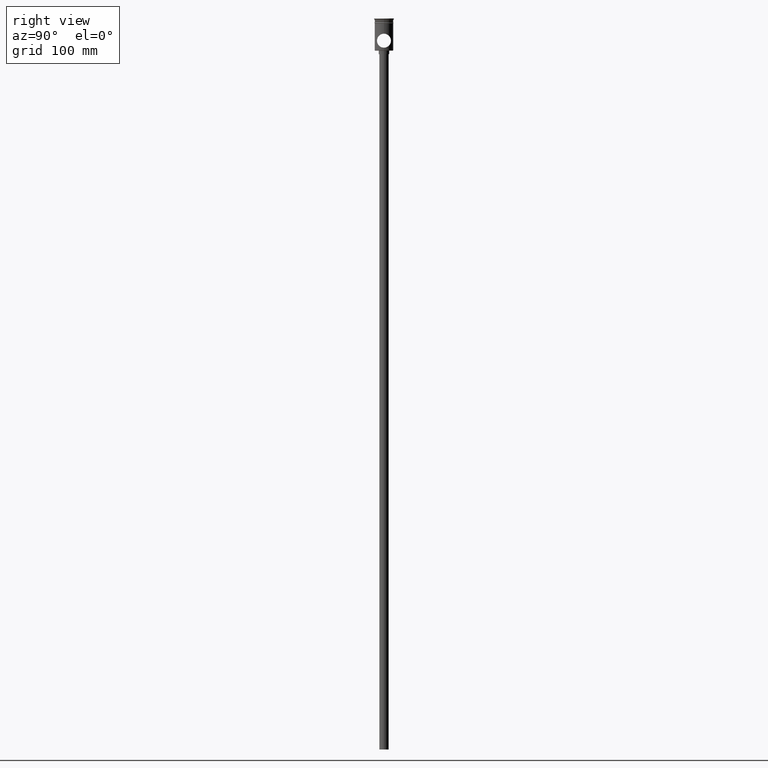
[diagram: clean part render]
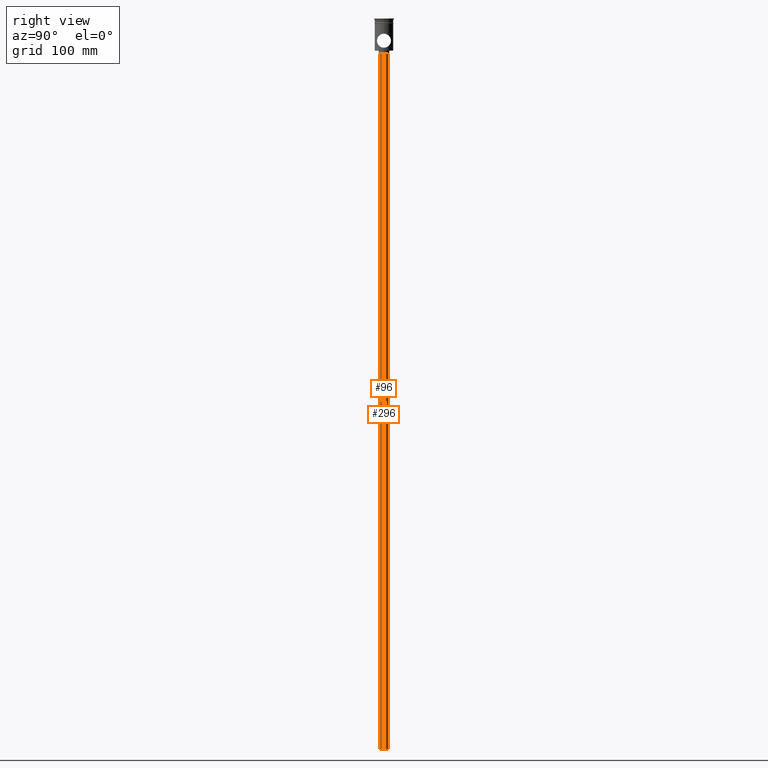
[diagram: same view with one multi-face feature highlighted, each face labeled with its STEP entity id]
A machine part, right view. The highlighted faces form ONE feature: a constant-radius fillet chain: 2 tangent blend faces with common blend radius 4 mm. The faces share edges in the B-rep.
Their STEP definitions:
[1] entity #96 (Cylinder):
#90 = VERTEX_POINT ( 'NONE', #298 ) ;
#94 = AXIS2_PLACEMENT_3D ( 'NONE', #335, #801, #144 ) ;
#96 = ADVANCED_FACE ( 'NONE', ( #416 ), #1240, .T. ) ;
#112 = ORIENTED_EDGE ( 'NONE', *, *, #1518, .F. ) ;
#122 = ORIENTED_EDGE ( 'NONE', *, *, #762, .T. ) ;
#144 = DIRECTION ( 'NONE',  ( -1.000000000000000000, 0.000000000000000000, 0.000000000000000000 ) ) ;
#204 = DIRECTION ( 'NONE',  ( -0.000000000000000000, -0.000000000000000000, 1.000000000000000000 ) ) ;
#237 = CARTESIAN_POINT ( 'NONE',  ( 0.000000000000000000, 0.000000000000000000, -30.50000000000000000 ) ) ;
#282 = CARTESIAN_POINT ( 'NONE',  ( -4.000000000000000000, 4.898587196589412829E-16, -627.5000000000000000 ) ) ;
#298 = CARTESIAN_POINT ( 'NONE',  ( -4.000000000000000000, 4.898587196589412829E-16, -627.5000000000000000 ) ) ;
#308 = VERTEX_POINT ( 'NONE', #588 ) ;
#335 = CARTESIAN_POINT ( 'NONE',  ( 0.000000000000000000, 0.000000000000000000, -627.5000000000000000 ) ) ;
#353 = CARTESIAN_POINT ( 'NONE',  ( -4.000000000000000000, 4.898587196589412829E-16, -30.50000000000000000 ) ) ;
#364 = DIRECTION ( 'NONE',  ( -1.000000000000000000, 0.000000000000000000, 0.000000000000000000 ) ) ;
#399 = DIRECTION ( 'NONE',  ( -0.000000000000000000, -0.000000000000000000, 1.000000000000000000 ) ) ;
#416 = FACE_OUTER_BOUND ( 'NONE', #935, .T. ) ;
#439 = DIRECTION ( 'NONE',  ( 1.000000000000000000, 0.000000000000000000, 0.000000000000000000 ) ) ;
#539 = VECTOR ( 'NONE', #399, 1000.000000000000000 ) ;
#588 = CARTESIAN_POINT ( 'NONE',  ( 4.000000000000000000, 0.000000000000000000, -30.50000000000000000 ) ) ;
#605 = AXIS2_PLACEMENT_3D ( 'NONE', #878, #1232, #439 ) ;
#633 = AXIS2_PLACEMENT_3D ( 'NONE', #237, #1188, #364 ) ;
#664 = EDGE_CURVE ( 'NONE', #959, #308, #1498, .T. ) ;
#666 = CARTESIAN_POINT ( 'NONE',  ( 4.000000000000000000, 0.000000000000000000, -627.5000000000000000 ) ) ;
#669 = ORIENTED_EDGE ( 'NONE', *, *, #664, .T. ) ;
#723 = CIRCLE ( 'NONE', #633, 4.000000000000000000 ) ;
#762 = EDGE_CURVE ( 'NONE', #308, #1126, #723, .T. ) ;
#794 = VECTOR ( 'NONE', #204, 1000.000000000000000 ) ;
#801 = DIRECTION ( 'NONE',  ( 0.000000000000000000, 0.000000000000000000, -1.000000000000000000 ) ) ;
#823 = CIRCLE ( 'NONE', #94, 4.000000000000000000 ) ;
#878 = CARTESIAN_POINT ( 'NONE',  ( 0.000000000000000000, 0.000000000000000000, -627.5000000000000000 ) ) ;
#935 = EDGE_LOOP ( 'NONE', ( #1000, #112, #669, #122 ) ) ;
#959 = VERTEX_POINT ( 'NONE', #666 ) ;
#1000 = ORIENTED_EDGE ( 'NONE', *, *, #1371, .F. ) ;
#1126 = VERTEX_POINT ( 'NONE', #353 ) ;
#1188 = DIRECTION ( 'NONE',  ( 0.000000000000000000, 0.000000000000000000, -1.000000000000000000 ) ) ;
#1232 = DIRECTION ( 'NONE',  ( -0.000000000000000000, -0.000000000000000000, 1.000000000000000000 ) ) ;
#1240 = CYLINDRICAL_SURFACE ( 'NONE', #605, 4.000000000000000000 ) ;
#1261 = CARTESIAN_POINT ( 'NONE',  ( 4.000000000000000000, 0.000000000000000000, -627.5000000000000000 ) ) ;
#1331 = LINE ( 'NONE', #282, #539 ) ;
#1371 = EDGE_CURVE ( 'NONE', #90, #1126, #1331, .T. ) ;
#1498 = LINE ( 'NONE', #1261, #794 ) ;
#1518 = EDGE_CURVE ( 'NONE', #959, #90, #823, .T. ) ;
[2] entity #296 (Cylinder):
#90 = VERTEX_POINT ( 'NONE', #298 ) ;
#155 = EDGE_CURVE ( 'NONE', #90, #959, #1141, .T. ) ;
#183 = DIRECTION ( 'NONE',  ( -1.000000000000000000, 0.000000000000000000, 0.000000000000000000 ) ) ;
#204 = DIRECTION ( 'NONE',  ( -0.000000000000000000, -0.000000000000000000, 1.000000000000000000 ) ) ;
#282 = CARTESIAN_POINT ( 'NONE',  ( -4.000000000000000000, 4.898587196589412829E-16, -627.5000000000000000 ) ) ;
#296 = ADVANCED_FACE ( 'NONE', ( #1283 ), #699, .T. ) ;
#298 = CARTESIAN_POINT ( 'NONE',  ( -4.000000000000000000, 4.898587196589412829E-16, -627.5000000000000000 ) ) ;
#300 = ORIENTED_EDGE ( 'NONE', *, *, #664, .F. ) ;
#308 = VERTEX_POINT ( 'NONE', #588 ) ;
#327 = CARTESIAN_POINT ( 'NONE',  ( 0.000000000000000000, 0.000000000000000000, -30.50000000000000000 ) ) ;
#353 = CARTESIAN_POINT ( 'NONE',  ( -4.000000000000000000, 4.898587196589412829E-16, -30.50000000000000000 ) ) ;
#359 = DIRECTION ( 'NONE',  ( -0.000000000000000000, -0.000000000000000000, 1.000000000000000000 ) ) ;
#399 = DIRECTION ( 'NONE',  ( -0.000000000000000000, -0.000000000000000000, 1.000000000000000000 ) ) ;
#412 = EDGE_LOOP ( 'NONE', ( #862, #928, #1014, #300 ) ) ;
#539 = VECTOR ( 'NONE', #399, 1000.000000000000000 ) ;
#577 = DIRECTION ( 'NONE',  ( 0.000000000000000000, 0.000000000000000000, -1.000000000000000000 ) ) ;
#586 = CIRCLE ( 'NONE', #749, 4.000000000000000000 ) ;
#588 = CARTESIAN_POINT ( 'NONE',  ( 4.000000000000000000, 0.000000000000000000, -30.50000000000000000 ) ) ;
#609 = EDGE_CURVE ( 'NONE', #1126, #308, #586, .T. ) ;
#664 = EDGE_CURVE ( 'NONE', #959, #308, #1498, .T. ) ;
#666 = CARTESIAN_POINT ( 'NONE',  ( 4.000000000000000000, 0.000000000000000000, -627.5000000000000000 ) ) ;
#677 = AXIS2_PLACEMENT_3D ( 'NONE', #707, #359, #802 ) ;
#699 = CYLINDRICAL_SURFACE ( 'NONE', #677, 4.000000000000000000 ) ;
#707 = CARTESIAN_POINT ( 'NONE',  ( 0.000000000000000000, 0.000000000000000000, -627.5000000000000000 ) ) ;
#749 = AXIS2_PLACEMENT_3D ( 'NONE', #327, #577, #1402 ) ;
#794 = VECTOR ( 'NONE', #204, 1000.000000000000000 ) ;
#802 = DIRECTION ( 'NONE',  ( 1.000000000000000000, 0.000000000000000000, 0.000000000000000000 ) ) ;
#862 = ORIENTED_EDGE ( 'NONE', *, *, #155, .F. ) ;
#928 = ORIENTED_EDGE ( 'NONE', *, *, #1371, .T. ) ;
#959 = VERTEX_POINT ( 'NONE', #666 ) ;
#996 = DIRECTION ( 'NONE',  ( 0.000000000000000000, 0.000000000000000000, -1.000000000000000000 ) ) ;
#1014 = ORIENTED_EDGE ( 'NONE', *, *, #609, .T. ) ;
#1126 = VERTEX_POINT ( 'NONE', #353 ) ;
#1129 = CARTESIAN_POINT ( 'NONE',  ( 0.000000000000000000, 0.000000000000000000, -627.5000000000000000 ) ) ;
#1141 = CIRCLE ( 'NONE', #1285, 4.000000000000000000 ) ;
#1261 = CARTESIAN_POINT ( 'NONE',  ( 4.000000000000000000, 0.000000000000000000, -627.5000000000000000 ) ) ;
#1283 = FACE_OUTER_BOUND ( 'NONE', #412, .T. ) ;
#1285 = AXIS2_PLACEMENT_3D ( 'NONE', #1129, #996, #183 ) ;
#1331 = LINE ( 'NONE', #282, #539 ) ;
#1371 = EDGE_CURVE ( 'NONE', #90, #1126, #1331, .T. ) ;
#1402 = DIRECTION ( 'NONE',  ( -1.000000000000000000, 0.000000000000000000, 0.000000000000000000 ) ) ;
#1498 = LINE ( 'NONE', #1261, #794 ) ;